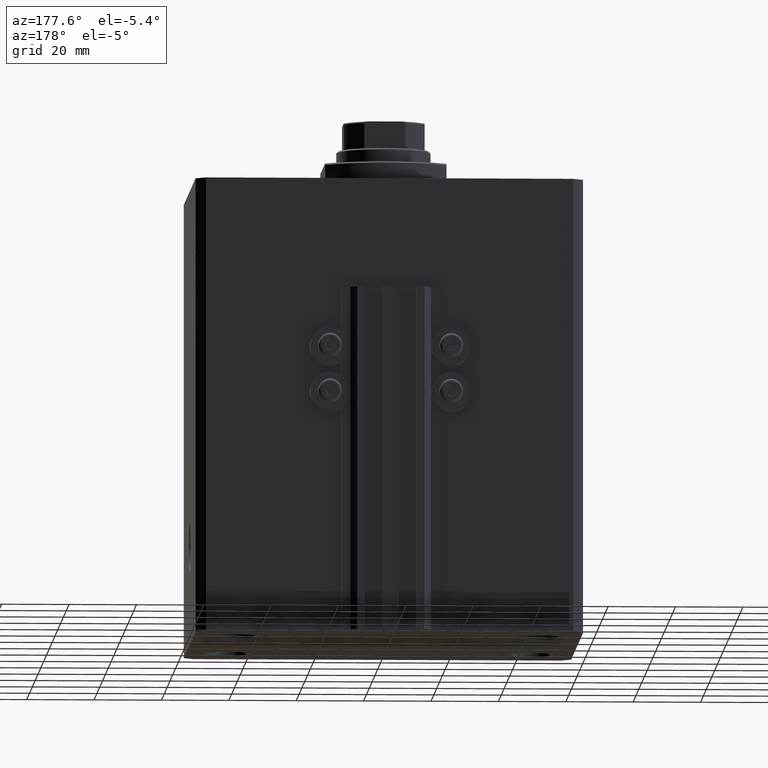
[diagram: clean part render]
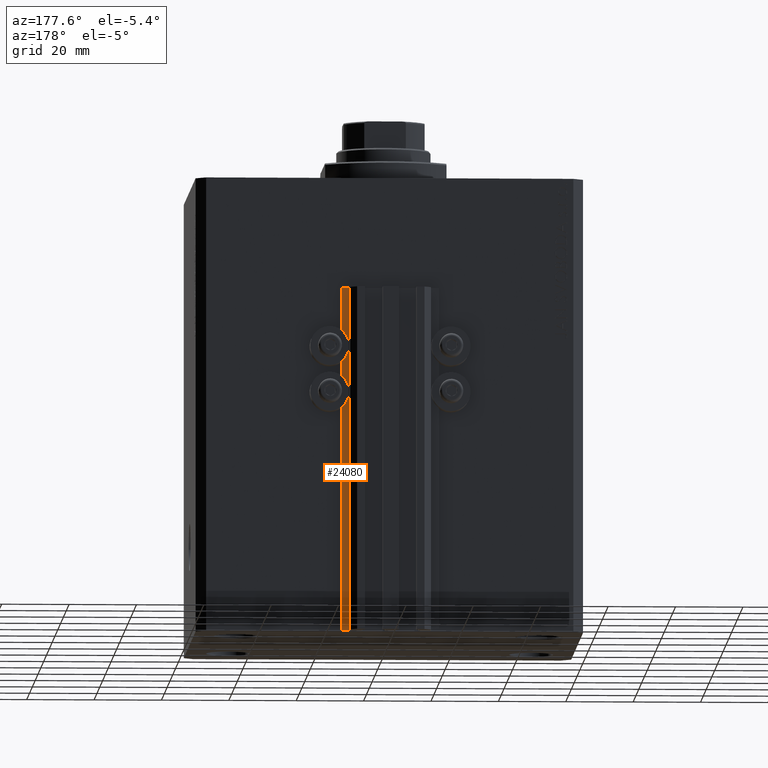
[diagram: same view with one face highlighted and labeled with its STEP entity id]
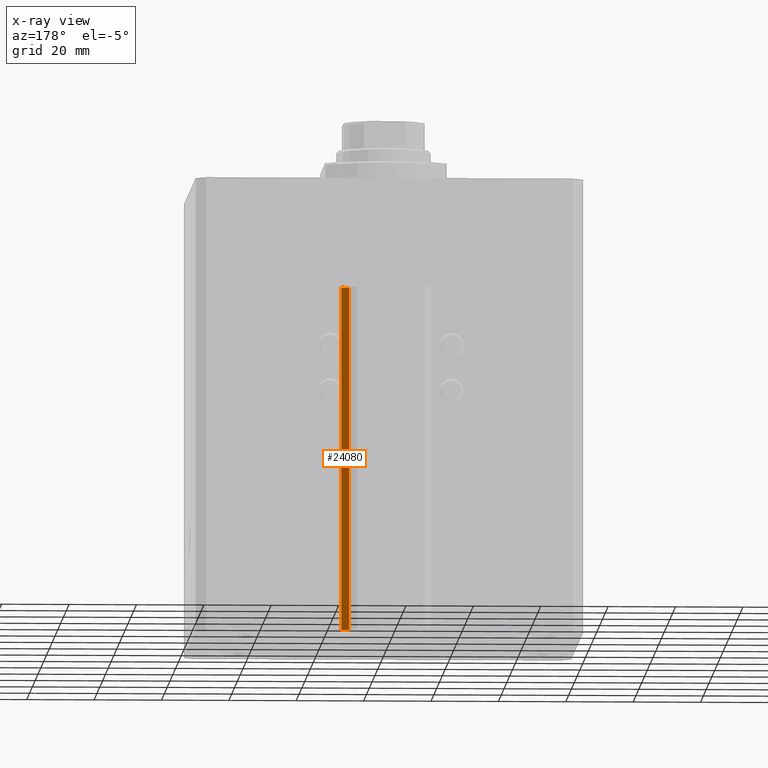
[diagram: x-ray of the same camera — body ghosted, the highlighted face saturated]
A machine part, auxiliary view. The second image highlights one B-rep face of the part: STEP entity #24080.
The next image is the same camera in x-ray: the body ghosted, the highlighted face saturated — about 0% of this face is hidden behind the body in this view.
In plain terms, the highlighted planar face has unit normal (0, 1, 0).
Its self-contained STEP definition (entity closure, byte-faithful):
#270 = EDGE_CURVE ( 'NONE', #861, #16289, #4218, .T. ) ;
#697 = ORIENTED_EDGE ( 'NONE', *, *, #270, .T. ) ;
#861 = VERTEX_POINT ( 'NONE', #20378 ) ;
#2355 = EDGE_CURVE ( 'NONE', #42891, #861, #29475, .T. ) ;
#3435 = DIRECTION ( 'NONE',  ( -1.000000000000000000, 0.000000000000000000, 0.000000000000000000 ) ) ;
#4218 = LINE ( 'NONE', #14008, #38267 ) ;
#6730 = EDGE_CURVE ( 'NONE', #42891, #22503, #39241, .T. ) ;
#6831 = DIRECTION ( 'NONE',  ( 0.000000000000000000, 0.000000000000000000, 1.000000000000000000 ) ) ;
#8244 = PLANE ( 'NONE',  #30167 ) ;
#9711 = VECTOR ( 'NONE', #36809, 1000.000000000000000 ) ;
#14008 = CARTESIAN_POINT ( 'NONE',  ( 12.20000000000000107, 47.50000000000001421, -135.0000000000000000 ) ) ;
#14254 = VECTOR ( 'NONE', #31169, 1000.000000000000000 ) ;
#15645 = FACE_OUTER_BOUND ( 'NONE', #42902, .T. ) ;
#16289 = VERTEX_POINT ( 'NONE', #28076 ) ;
#16591 = LINE ( 'NONE', #27355, #14254 ) ;
#20378 = CARTESIAN_POINT ( 'NONE',  ( 12.20000000000000107, 47.50000000000001421, -135.0000000000000000 ) ) ;
#20844 = ORIENTED_EDGE ( 'NONE', *, *, #2355, .T. ) ;
#21123 = CARTESIAN_POINT ( 'NONE',  ( 14.49999999999999645, 47.50000000000001421, -135.0000000000000000 ) ) ;
#21603 = CARTESIAN_POINT ( 'NONE',  ( 14.49999999999999645, 47.50000000000001421, -135.0000000000000000 ) ) ;
#22503 = VERTEX_POINT ( 'NONE', #34933 ) ;
#22972 = VECTOR ( 'NONE', #3435, 1000.000000000000000 ) ;
#24080 = ADVANCED_FACE ( 'NONE', ( #15645 ), #8244, .T. ) ;
#26404 = DIRECTION ( 'NONE',  ( 0.000000000000000000, 1.000000000000000000, -0.000000000000000000 ) ) ;
#27355 = CARTESIAN_POINT ( 'NONE',  ( 14.49999999999999645, 47.50000000000001421, -33.00000000000000000 ) ) ;
#27817 = EDGE_CURVE ( 'NONE', #22503, #16289, #16591, .T. ) ;
#28076 = CARTESIAN_POINT ( 'NONE',  ( 12.20000000000000107, 47.50000000000001421, -33.00000000000000000 ) ) ;
#28424 = CARTESIAN_POINT ( 'NONE',  ( 14.49999999999999645, 47.50000000000001421, -135.0000000000000000 ) ) ;
#28751 = ORIENTED_EDGE ( 'NONE', *, *, #6730, .F. ) ;
#29475 = LINE ( 'NONE', #21603, #22972 ) ;
#30167 = AXIS2_PLACEMENT_3D ( 'NONE', #44282, #26404, #40700 ) ;
#31169 = DIRECTION ( 'NONE',  ( -1.000000000000000000, 0.000000000000000000, 0.000000000000000000 ) ) ;
#34933 = CARTESIAN_POINT ( 'NONE',  ( 14.49999999999999645, 47.50000000000001421, -33.00000000000000000 ) ) ;
#35103 = ORIENTED_EDGE ( 'NONE', *, *, #27817, .F. ) ;
#36809 = DIRECTION ( 'NONE',  ( 0.000000000000000000, 0.000000000000000000, 1.000000000000000000 ) ) ;
#38267 = VECTOR ( 'NONE', #6831, 1000.000000000000000 ) ;
#39241 = LINE ( 'NONE', #21123, #9711 ) ;
#40700 = DIRECTION ( 'NONE',  ( 0.000000000000000000, 0.000000000000000000, 1.000000000000000000 ) ) ;
#42891 = VERTEX_POINT ( 'NONE', #28424 ) ;
#42902 = EDGE_LOOP ( 'NONE', ( #35103, #28751, #20844, #697 ) ) ;
#44282 = CARTESIAN_POINT ( 'NONE',  ( 14.49999999999999645, 47.50000000000001421, -135.0000000000000000 ) ) ;